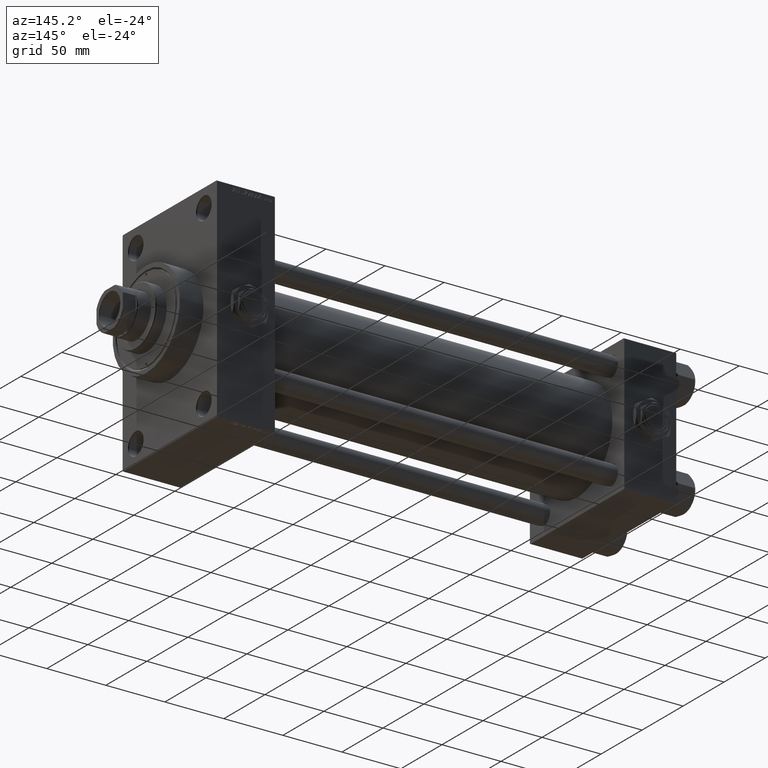
[diagram: clean part render]
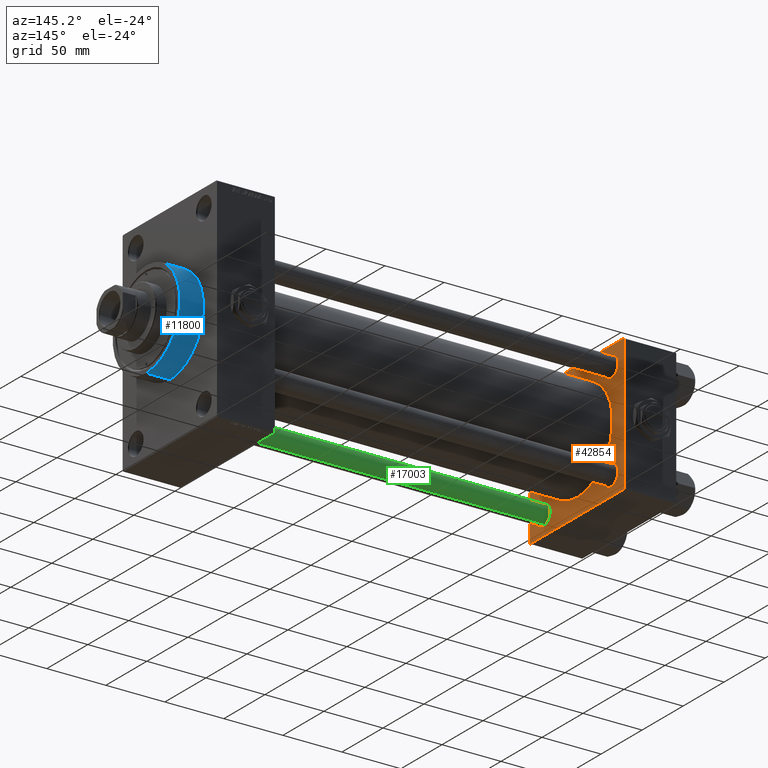
[diagram: same view with three faces highlighted in distinct colors, each labeled with its STEP entity id]
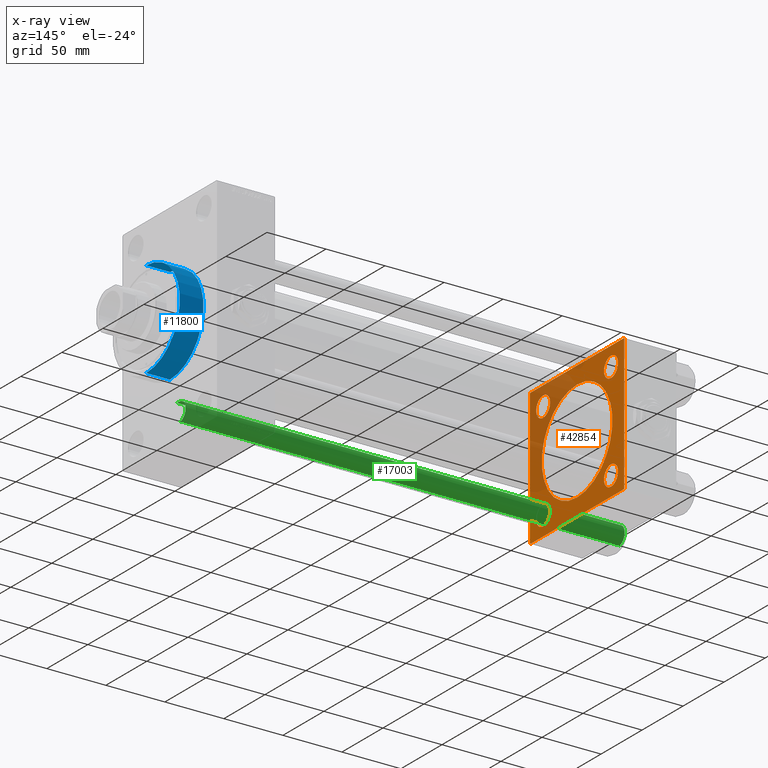
[diagram: x-ray of the same camera — body ghosted, the three highlighted faces saturated]
A machine part, auxiliary view with three faces highlighted in distinct colors.
The next image is the same camera in x-ray (body ghosted, the three faces saturated) — at least one of them is partly hidden behind the body in this view.
Their STEP definitions:

[orange] entity #42854 — the highlighted planar face has unit normal (-1, 0, 0).
#926 = CARTESIAN_POINT ( 'NONE',  ( 44.00000000000000000, 41.34999999999999432, -41.35000000000000142 ) ) ;
#987 = CARTESIAN_POINT ( 'NONE',  ( 44.00000000000000000, 57.49999999999999289, 57.50000000000000711 ) ) ;
#1160 = CARTESIAN_POINT ( 'NONE',  ( 44.00000000000000000, 57.00000000000000711, 57.50000000000000711 ) ) ;
#1310 = VERTEX_POINT ( 'NONE', #1160 ) ;
#1974 = EDGE_CURVE ( 'NONE', #4728, #11962, #9548, .T. ) ;
#2248 = AXIS2_PLACEMENT_3D ( 'NONE', #34813, #24191, #12304 ) ;
#2604 = CARTESIAN_POINT ( 'NONE',  ( 44.00000000000000000, -41.34999999999998721, -49.85000000000002274 ) ) ;
#2714 = CARTESIAN_POINT ( 'NONE',  ( 44.00000000000000000, -41.34999999999998721, -32.85000000000000142 ) ) ;
#3235 = VERTEX_POINT ( 'NONE', #35497 ) ;
#3371 = ORIENTED_EDGE ( 'NONE', *, *, #25152, .T. ) ;
#3894 = VERTEX_POINT ( 'NONE', #27728 ) ;
#4070 = CARTESIAN_POINT ( 'NONE',  ( 44.00000000000000000, -41.34999999999998721, 32.85000000000000142 ) ) ;
#4121 = ORIENTED_EDGE ( 'NONE', *, *, #17102, .T. ) ;
#4189 = CARTESIAN_POINT ( 'NONE',  ( 44.00000000000000000, 57.49999999999999289, -57.49999999999999289 ) ) ;
#4604 = VERTEX_POINT ( 'NONE', #21951 ) ;
#4619 = EDGE_LOOP ( 'NONE', ( #24605, #30424 ) ) ;
#4728 = VERTEX_POINT ( 'NONE', #27236 ) ;
#5575 = VECTOR ( 'NONE', #7831, 1000.000000000000000 ) ;
#6070 = EDGE_LOOP ( 'NONE', ( #7969, #35408 ) ) ;
#7140 = EDGE_CURVE ( 'NONE', #36624, #33031, #15646, .T. ) ;
#7188 = VERTEX_POINT ( 'NONE', #42701 ) ;
#7281 = VERTEX_POINT ( 'NONE', #9324 ) ;
#7466 = EDGE_LOOP ( 'NONE', ( #41020, #23573 ) ) ;
#7478 = DIRECTION ( 'NONE',  ( 0.000000000000000000, 0.7071067811865474617, -0.7071067811865474617 ) ) ;
#7627 = CARTESIAN_POINT ( 'NONE',  ( 44.00000000000000000, 41.34999999999999432, 41.35000000000000142 ) ) ;
#7831 = DIRECTION ( 'NONE',  ( 0.000000000000000000, 0.000000000000000000, -1.000000000000000000 ) ) ;
#7969 = ORIENTED_EDGE ( 'NONE', *, *, #17275, .T. ) ;
#8057 = EDGE_CURVE ( 'NONE', #46664, #41286, #19688, .T. ) ;
#8285 = VECTOR ( 'NONE', #43813, 1000.000000000000114 ) ;
#8626 = FACE_BOUND ( 'NONE', #17280, .T. ) ;
#8636 = EDGE_CURVE ( 'NONE', #18512, #29379, #49222, .T. ) ;
#8782 = DIRECTION ( 'NONE',  ( -1.000000000000000000, 0.000000000000000000, -0.000000000000000000 ) ) ;
#8943 = LINE ( 'NONE', #24356, #8285 ) ;
#9012 = DIRECTION ( 'NONE',  ( 0.000000000000000000, 0.000000000000000000, 1.000000000000000000 ) ) ;
#9324 = CARTESIAN_POINT ( 'NONE',  ( 44.00000000000000000, -57.00000000000000711, -57.50000000000000711 ) ) ;
#9350 = ORIENTED_EDGE ( 'NONE', *, *, #26186, .F. ) ;
#9548 = CIRCLE ( 'NONE', #2248, 43.00000000000000000 ) ;
#9910 = AXIS2_PLACEMENT_3D ( 'NONE', #48192, #28223, #9012 ) ;
#10739 = AXIS2_PLACEMENT_3D ( 'NONE', #7627, #22290, #49851 ) ;
#10901 = CARTESIAN_POINT ( 'NONE',  ( 44.00000000000000000, -57.50000000000000711, 57.00000000000000711 ) ) ;
#11282 = ORIENTED_EDGE ( 'NONE', *, *, #27041, .T. ) ;
#11309 = ORIENTED_EDGE ( 'NONE', *, *, #17804, .T. ) ;
#11902 = CARTESIAN_POINT ( 'NONE',  ( 44.00000000000000000, 0.000000000000000000, 0.000000000000000000 ) ) ;
#11962 = VERTEX_POINT ( 'NONE', #22264 ) ;
#12304 = DIRECTION ( 'NONE',  ( 0.000000000000000000, 0.000000000000000000, 1.000000000000000000 ) ) ;
#12360 = AXIS2_PLACEMENT_3D ( 'NONE', #11902, #31871, #19471 ) ;
#12658 = FACE_BOUND ( 'NONE', #34454, .T. ) ;
#13358 = CARTESIAN_POINT ( 'NONE',  ( 44.00000000000000000, 41.34999999999999432, 41.35000000000000142 ) ) ;
#13385 = DIRECTION ( 'NONE',  ( -1.000000000000000000, 0.000000000000000000, -0.000000000000000000 ) ) ;
#14051 = CIRCLE ( 'NONE', #19655, 43.00000000000000000 ) ;
#14391 = ORIENTED_EDGE ( 'NONE', *, *, #7140, .T. ) ;
#14881 = DIRECTION ( 'NONE',  ( 0.000000000000000000, -1.000000000000000000, -1.206764157201257045E-16 ) ) ;
#15351 = EDGE_LOOP ( 'NONE', ( #9350, #24336, #49417, #11282, #4121, #33956, #14391, #3371 ) ) ;
#15556 = CIRCLE ( 'NONE', #10739, 8.500000000000007105 ) ;
#15615 = DIRECTION ( 'NONE',  ( -1.000000000000000000, 0.000000000000000000, -0.000000000000000000 ) ) ;
#15646 = LINE ( 'NONE', #27785, #5575 ) ;
#16210 = CARTESIAN_POINT ( 'NONE',  ( 43.99999999999998579, -2.602085213965210642E-15, 0.000000000000000000 ) ) ;
#16403 = DIRECTION ( 'NONE',  ( 0.000000000000000000, 0.000000000000000000, -1.000000000000000000 ) ) ;
#16422 = CARTESIAN_POINT ( 'NONE',  ( 44.00000000000000000, 41.34999999999999432, 32.84999999999999432 ) ) ;
#17102 = EDGE_CURVE ( 'NONE', #1310, #3894, #21723, .T. ) ;
#17275 = EDGE_CURVE ( 'NONE', #25281, #42744, #30115, .T. ) ;
#17280 = EDGE_LOOP ( 'NONE', ( #11309, #17833 ) ) ;
#17407 = VECTOR ( 'NONE', #27692, 1000.000000000000000 ) ;
#17581 = VECTOR ( 'NONE', #41742, 1000.000000000000114 ) ;
#17804 = EDGE_CURVE ( 'NONE', #42213, #3235, #15556, .T. ) ;
#17833 = ORIENTED_EDGE ( 'NONE', *, *, #37882, .T. ) ;
#17946 = DIRECTION ( 'NONE',  ( 0.000000000000000000, 0.000000000000000000, 1.000000000000000000 ) ) ;
#17981 = CIRCLE ( 'NONE', #41414, 8.500000000000007105 ) ;
#18512 = VERTEX_POINT ( 'NONE', #2714 ) ;
#18516 = CARTESIAN_POINT ( 'NONE',  ( 44.00000000000000000, 57.49999999999999289, 57.00000000000003553 ) ) ;
#18983 = CARTESIAN_POINT ( 'NONE',  ( 44.00000000000000000, -41.34999999999998721, 49.85000000000002274 ) ) ;
#19051 = EDGE_CURVE ( 'NONE', #7188, #41286, #8943, .T. ) ;
#19111 = CARTESIAN_POINT ( 'NONE',  ( 44.00000000000000000, 57.00000000000000711, 57.50000000000000711 ) ) ;
#19471 = DIRECTION ( 'NONE',  ( -0.000000000000000000, 0.000000000000000000, 1.000000000000000000 ) ) ;
#19651 = CARTESIAN_POINT ( 'NONE',  ( 44.00000000000000000, -41.34999999999998721, 41.35000000000000853 ) ) ;
#19655 = AXIS2_PLACEMENT_3D ( 'NONE', #16210, #29039, #29532 ) ;
#19688 = LINE ( 'NONE', #987, #41916 ) ;
#19810 = EDGE_CURVE ( 'NONE', #42744, #25281, #34123, .T. ) ;
#20531 = LINE ( 'NONE', #35966, #44005 ) ;
#20797 = EDGE_CURVE ( 'NONE', #4604, #44003, #17981, .T. ) ;
#21723 = LINE ( 'NONE', #42181, #38165 ) ;
#21951 = CARTESIAN_POINT ( 'NONE',  ( 44.00000000000000000, 41.34999999999999432, -32.84999999999999432 ) ) ;
#22264 = CARTESIAN_POINT ( 'NONE',  ( 43.99999999999998579, 2.663896022368408223E-15, -43.00000000000000000 ) ) ;
#22290 = DIRECTION ( 'NONE',  ( -1.000000000000000000, 0.000000000000000000, -0.000000000000000000 ) ) ;
#23573 = ORIENTED_EDGE ( 'NONE', *, *, #44857, .F. ) ;
#23786 = FACE_OUTER_BOUND ( 'NONE', #15351, .T. ) ;
#23997 = CARTESIAN_POINT ( 'NONE',  ( 44.00000000000000000, 41.34999999999999432, -49.85000000000001563 ) ) ;
#24191 = DIRECTION ( 'NONE',  ( 1.000000000000000000, -0.000000000000000000, 0.000000000000000000 ) ) ;
#24196 = DIRECTION ( 'NONE',  ( 0.000000000000000000, 0.000000000000000000, 1.000000000000000000 ) ) ;
#24336 = ORIENTED_EDGE ( 'NONE', *, *, #19051, .T. ) ;
#24356 = CARTESIAN_POINT ( 'NONE',  ( 44.00000000000000000, 57.49999999999999289, -57.00000000000000711 ) ) ;
#24378 = DIRECTION ( 'NONE',  ( -1.000000000000000000, 0.000000000000000000, -0.000000000000000000 ) ) ;
#24605 = ORIENTED_EDGE ( 'NONE', *, *, #29794, .T. ) ;
#25152 = EDGE_CURVE ( 'NONE', #33031, #7281, #20531, .T. ) ;
#25281 = VERTEX_POINT ( 'NONE', #4070 ) ;
#26186 = EDGE_CURVE ( 'NONE', #7188, #7281, #42857, .T. ) ;
#26570 = CIRCLE ( 'NONE', #30612, 8.500000000000007105 ) ;
#27041 = EDGE_CURVE ( 'NONE', #46664, #1310, #39587, .T. ) ;
#27236 = CARTESIAN_POINT ( 'NONE',  ( 43.99999999999998579, -2.602085213965210642E-15, 43.00000000000000000 ) ) ;
#27692 = DIRECTION ( 'NONE',  ( 0.000000000000000000, -1.000000000000000000, -1.206764157201257045E-16 ) ) ;
#27728 = CARTESIAN_POINT ( 'NONE',  ( 44.00000000000000000, -57.00000000000003553, 57.49999999999999289 ) ) ;
#27785 = CARTESIAN_POINT ( 'NONE',  ( 44.00000000000000000, -57.50000000000000711, 57.49999999999999289 ) ) ;
#28023 = CIRCLE ( 'NONE', #36897, 8.500000000000007105 ) ;
#28082 = FACE_BOUND ( 'NONE', #6070, .T. ) ;
#28195 = AXIS2_PLACEMENT_3D ( 'NONE', #40038, #24378, #36255 ) ;
#28223 = DIRECTION ( 'NONE',  ( -1.000000000000000000, 0.000000000000000000, -0.000000000000000000 ) ) ;
#29039 = DIRECTION ( 'NONE',  ( 1.000000000000000000, -0.000000000000000000, 0.000000000000000000 ) ) ;
#29089 = CARTESIAN_POINT ( 'NONE',  ( 44.00000000000000000, -41.34999999999998721, -41.35000000000000853 ) ) ;
#29379 = VERTEX_POINT ( 'NONE', #2604 ) ;
#29532 = DIRECTION ( 'NONE',  ( 0.000000000000000000, 0.000000000000000000, 1.000000000000000000 ) ) ;
#29794 = EDGE_CURVE ( 'NONE', #44003, #4604, #28023, .T. ) ;
#30115 = CIRCLE ( 'NONE', #43031, 8.500000000000007105 ) ;
#30424 = ORIENTED_EDGE ( 'NONE', *, *, #20797, .T. ) ;
#30489 = ORIENTED_EDGE ( 'NONE', *, *, #8636, .T. ) ;
#30612 = AXIS2_PLACEMENT_3D ( 'NONE', #13358, #32824, #44205 ) ;
#30872 = FACE_BOUND ( 'NONE', #7466, .T. ) ;
#31871 = DIRECTION ( 'NONE',  ( -1.000000000000000000, 0.000000000000000000, -0.000000000000000000 ) ) ;
#32824 = DIRECTION ( 'NONE',  ( -1.000000000000000000, 0.000000000000000000, -0.000000000000000000 ) ) ;
#33031 = VERTEX_POINT ( 'NONE', #34613 ) ;
#33666 = EDGE_CURVE ( 'NONE', #29379, #18512, #36135, .T. ) ;
#33686 = CARTESIAN_POINT ( 'NONE',  ( 44.00000000000000000, -57.50000000000000711, 57.00000000000000711 ) ) ;
#33956 = ORIENTED_EDGE ( 'NONE', *, *, #34407, .T. ) ;
#34123 = CIRCLE ( 'NONE', #9910, 8.500000000000007105 ) ;
#34407 = EDGE_CURVE ( 'NONE', #3894, #36624, #45542, .T. ) ;
#34454 = EDGE_LOOP ( 'NONE', ( #44125, #30489 ) ) ;
#34548 = DIRECTION ( 'NONE',  ( 0.000000000000000000, -0.7071067811865573427, 0.7071067811865376918 ) ) ;
#34613 = CARTESIAN_POINT ( 'NONE',  ( 44.00000000000000000, -57.50000000000000711, -57.00000000000000711 ) ) ;
#34813 = CARTESIAN_POINT ( 'NONE',  ( 43.99999999999998579, -2.602085213965210642E-15, 0.000000000000000000 ) ) ;
#35398 = CARTESIAN_POINT ( 'NONE',  ( 44.00000000000000000, 57.49999999999999289, -57.00000000000000711 ) ) ;
#35408 = ORIENTED_EDGE ( 'NONE', *, *, #19810, .T. ) ;
#35497 = CARTESIAN_POINT ( 'NONE',  ( 44.00000000000000000, 41.34999999999999432, 49.85000000000001563 ) ) ;
#35660 = PLANE ( 'NONE',  #12360 ) ;
#35966 = CARTESIAN_POINT ( 'NONE',  ( 44.00000000000000000, -57.00000000000000711, -57.50000000000000711 ) ) ;
#36135 = CIRCLE ( 'NONE', #39347, 8.500000000000007105 ) ;
#36255 = DIRECTION ( 'NONE',  ( 0.000000000000000000, 0.000000000000000000, 1.000000000000000000 ) ) ;
#36624 = VERTEX_POINT ( 'NONE', #33686 ) ;
#36897 = AXIS2_PLACEMENT_3D ( 'NONE', #926, #8782, #24196 ) ;
#36900 = DIRECTION ( 'NONE',  ( 0.000000000000000000, 0.000000000000000000, 1.000000000000000000 ) ) ;
#37882 = EDGE_CURVE ( 'NONE', #3235, #42213, #26570, .T. ) ;
#38165 = VECTOR ( 'NONE', #14881, 1000.000000000000000 ) ;
#39347 = AXIS2_PLACEMENT_3D ( 'NONE', #29089, #48570, #17946 ) ;
#39391 = DIRECTION ( 'NONE',  ( 0.000000000000000000, 0.000000000000000000, 1.000000000000000000 ) ) ;
#39587 = LINE ( 'NONE', #19111, #44039 ) ;
#40038 = CARTESIAN_POINT ( 'NONE',  ( 44.00000000000000000, -41.34999999999998721, -41.35000000000000853 ) ) ;
#40184 = CARTESIAN_POINT ( 'NONE',  ( 44.00000000000000000, 41.34999999999999432, -41.35000000000000142 ) ) ;
#41020 = ORIENTED_EDGE ( 'NONE', *, *, #1974, .F. ) ;
#41286 = VERTEX_POINT ( 'NONE', #35398 ) ;
#41414 = AXIS2_PLACEMENT_3D ( 'NONE', #40184, #13385, #36900 ) ;
#41742 = DIRECTION ( 'NONE',  ( -0.000000000000000000, -0.7071067811865376918, -0.7071067811865573427 ) ) ;
#41916 = VECTOR ( 'NONE', #16403, 1000.000000000000000 ) ;
#42181 = CARTESIAN_POINT ( 'NONE',  ( 44.00000000000000000, 57.49999999999999289, 57.50000000000000711 ) ) ;
#42213 = VERTEX_POINT ( 'NONE', #16422 ) ;
#42701 = CARTESIAN_POINT ( 'NONE',  ( 44.00000000000000000, 57.00000000000002132, -57.49999999999999289 ) ) ;
#42744 = VERTEX_POINT ( 'NONE', #18983 ) ;
#42854 = ADVANCED_FACE ( 'NONE', ( #12658, #43238, #28082, #8626, #30872, #23786 ), #35660, .F. ) ;
#42857 = LINE ( 'NONE', #4189, #17407 ) ;
#43031 = AXIS2_PLACEMENT_3D ( 'NONE', #19651, #15615, #39391 ) ;
#43238 = FACE_BOUND ( 'NONE', #4619, .T. ) ;
#43813 = DIRECTION ( 'NONE',  ( -0.000000000000000000, 0.7071067811865376918, 0.7071067811865573427 ) ) ;
#44003 = VERTEX_POINT ( 'NONE', #23997 ) ;
#44005 = VECTOR ( 'NONE', #7478, 1000.000000000000114 ) ;
#44039 = VECTOR ( 'NONE', #34548, 1000.000000000000114 ) ;
#44125 = ORIENTED_EDGE ( 'NONE', *, *, #33666, .T. ) ;
#44205 = DIRECTION ( 'NONE',  ( 0.000000000000000000, 0.000000000000000000, 1.000000000000000000 ) ) ;
#44857 = EDGE_CURVE ( 'NONE', #11962, #4728, #14051, .T. ) ;
#45542 = LINE ( 'NONE', #10901, #17581 ) ;
#46664 = VERTEX_POINT ( 'NONE', #18516 ) ;
#48192 = CARTESIAN_POINT ( 'NONE',  ( 44.00000000000000000, -41.34999999999998721, 41.35000000000000853 ) ) ;
#48570 = DIRECTION ( 'NONE',  ( -1.000000000000000000, 0.000000000000000000, -0.000000000000000000 ) ) ;
#49222 = CIRCLE ( 'NONE', #28195, 8.500000000000007105 ) ;
#49417 = ORIENTED_EDGE ( 'NONE', *, *, #8057, .F. ) ;
#49851 = DIRECTION ( 'NONE',  ( 0.000000000000000000, 0.000000000000000000, 1.000000000000000000 ) ) ;

[blue] entity #11800 — the highlighted cylindrical surface (partial cylindrical patch) has radius 41 mm, axis along (-1, -0, -0).
#1907 = EDGE_CURVE ( 'NONE', #49213, #10602, #35563, .T. ) ;
#3650 = CARTESIAN_POINT ( 'NONE',  ( 409.0000000000000000, 0.000000000000000000, 0.000000000000000000 ) ) ;
#3856 = DIRECTION ( 'NONE',  ( 0.000000000000000000, 0.000000000000000000, 1.000000000000000000 ) ) ;
#4111 = CARTESIAN_POINT ( 'NONE',  ( 409.0000000000000000, 0.000000000000000000, 0.000000000000000000 ) ) ;
#4529 = DIRECTION ( 'NONE',  ( -1.000000000000000000, -0.000000000000000000, -0.000000000000000000 ) ) ;
#4671 = VECTOR ( 'NONE', #16329, 1000.000000000000000 ) ;
#6344 = EDGE_CURVE ( 'NONE', #34731, #49213, #16023, .T. ) ;
#6519 = ORIENTED_EDGE ( 'NONE', *, *, #33849, .T. ) ;
#7659 = FACE_OUTER_BOUND ( 'NONE', #17157, .T. ) ;
#7889 = CARTESIAN_POINT ( 'NONE',  ( 388.9999999999999432, 5.021051876504148963E-15, -41.00000000000000000 ) ) ;
#9036 = DIRECTION ( 'NONE',  ( 1.000000000000000000, 0.000000000000000000, 0.000000000000000000 ) ) ;
#10602 = VERTEX_POINT ( 'NONE', #10866 ) ;
#10866 = CARTESIAN_POINT ( 'NONE',  ( 388.9999999999999432, 0.000000000000000000, 41.00000000000000000 ) ) ;
#11800 = ADVANCED_FACE ( 'NONE', ( #7659 ), #23077, .T. ) ;
#12477 = EDGE_CURVE ( 'NONE', #49141, #10602, #45302, .T. ) ;
#12823 = CARTESIAN_POINT ( 'NONE',  ( 388.9999999999999432, 0.000000000000000000, 0.000000000000000000 ) ) ;
#16023 = CIRCLE ( 'NONE', #41835, 41.00000000000000000 ) ;
#16329 = DIRECTION ( 'NONE',  ( -1.000000000000000000, -0.000000000000000000, -0.000000000000000000 ) ) ;
#17157 = EDGE_LOOP ( 'NONE', ( #42927, #6519, #37193, #26218 ) ) ;
#19482 = CARTESIAN_POINT ( 'NONE',  ( 409.0000000000000000, 0.000000000000000000, 41.00000000000000000 ) ) ;
#19676 = LINE ( 'NONE', #39162, #49039 ) ;
#20369 = CARTESIAN_POINT ( 'NONE',  ( 409.0000000000000000, 0.000000000000000000, 41.00000000000000000 ) ) ;
#23077 = CYLINDRICAL_SURFACE ( 'NONE', #40424, 41.00000000000000000 ) ;
#26218 = ORIENTED_EDGE ( 'NONE', *, *, #1907, .F. ) ;
#32108 = CARTESIAN_POINT ( 'NONE',  ( 409.0000000000000000, 5.021051876504148963E-15, -41.00000000000000000 ) ) ;
#33849 = EDGE_CURVE ( 'NONE', #34731, #49141, #19676, .T. ) ;
#34494 = DIRECTION ( 'NONE',  ( 1.000000000000000000, 0.000000000000000000, 0.000000000000000000 ) ) ;
#34731 = VERTEX_POINT ( 'NONE', #32108 ) ;
#35563 = LINE ( 'NONE', #20369, #4671 ) ;
#37193 = ORIENTED_EDGE ( 'NONE', *, *, #12477, .T. ) ;
#38489 = DIRECTION ( 'NONE',  ( -1.000000000000000000, -0.000000000000000000, -0.000000000000000000 ) ) ;
#39162 = CARTESIAN_POINT ( 'NONE',  ( 409.0000000000000000, 5.021051876504148963E-15, -41.00000000000000000 ) ) ;
#40424 = AXIS2_PLACEMENT_3D ( 'NONE', #4111, #38489, #3856 ) ;
#41835 = AXIS2_PLACEMENT_3D ( 'NONE', #3650, #34494, #42568 ) ;
#42568 = DIRECTION ( 'NONE',  ( 0.000000000000000000, 0.000000000000000000, -1.000000000000000000 ) ) ;
#42927 = ORIENTED_EDGE ( 'NONE', *, *, #6344, .F. ) ;
#45302 = CIRCLE ( 'NONE', #46925, 41.00000000000000000 ) ;
#46925 = AXIS2_PLACEMENT_3D ( 'NONE', #12823, #9036, #47717 ) ;
#47717 = DIRECTION ( 'NONE',  ( 0.000000000000000000, 0.000000000000000000, -1.000000000000000000 ) ) ;
#49039 = VECTOR ( 'NONE', #4529, 1000.000000000000000 ) ;
#49141 = VERTEX_POINT ( 'NONE', #7889 ) ;
#49213 = VERTEX_POINT ( 'NONE', #19482 ) ;

[green] entity #17003 — the highlighted cylindrical surface (edge-blend (fillet) strip) has radius 8 mm, axis along (-1, 0, 0).
#975 = CARTESIAN_POINT ( 'NONE',  ( 0.000000000000000000, 0.000000000000000000, 372.5000000000000000 ) ) ;
#1406 = DIRECTION ( 'NONE',  ( -0.000000000000000000, -0.000000000000000000, 1.000000000000000000 ) ) ;
#2856 = CARTESIAN_POINT ( 'NONE',  ( -8.000000000000000000, 0.000000000000000000, 0.5000000000000559552 ) ) ;
#3708 = EDGE_LOOP ( 'NONE', ( #7076, #14266, #49852, #36091 ) ) ;
#5874 = VECTOR ( 'NONE', #18970, 1000.000000000000000 ) ;
#6267 = AXIS2_PLACEMENT_3D ( 'NONE', #975, #16388, #46251 ) ;
#7076 = ORIENTED_EDGE ( 'NONE', *, *, #15289, .F. ) ;
#13754 = EDGE_CURVE ( 'NONE', #24714, #29333, #49106, .T. ) ;
#14266 = ORIENTED_EDGE ( 'NONE', *, *, #33912, .T. ) ;
#14745 = AXIS2_PLACEMENT_3D ( 'NONE', #34898, #15431, #24037 ) ;
#15289 = EDGE_CURVE ( 'NONE', #31471, #19357, #33479, .T. ) ;
#15431 = DIRECTION ( 'NONE',  ( -0.000000000000000000, -0.000000000000000000, -1.000000000000000000 ) ) ;
#16388 = DIRECTION ( 'NONE',  ( 0.000000000000000000, 0.000000000000000000, -1.000000000000000000 ) ) ;
#17003 = ADVANCED_FACE ( 'NONE', ( #19463 ), #39693, .T. ) ;
#17068 = DIRECTION ( 'NONE',  ( 1.000000000000000000, 0.000000000000000000, 0.000000000000000000 ) ) ;
#18970 = DIRECTION ( 'NONE',  ( -0.000000000000000000, -0.000000000000000000, -1.000000000000000000 ) ) ;
#19357 = VERTEX_POINT ( 'NONE', #21688 ) ;
#19463 = FACE_OUTER_BOUND ( 'NONE', #3708, .T. ) ;
#21688 = CARTESIAN_POINT ( 'NONE',  ( 8.000000000000000000, 9.797174393178825657E-16, 0.5000000000000559552 ) ) ;
#24037 = DIRECTION ( 'NONE',  ( -1.000000000000000000, 0.000000000000000000, 0.000000000000000000 ) ) ;
#24714 = VERTEX_POINT ( 'NONE', #42173 ) ;
#26393 = DIRECTION ( 'NONE',  ( -0.000000000000000000, -0.000000000000000000, -1.000000000000000000 ) ) ;
#26885 = CIRCLE ( 'NONE', #33358, 8.000000000000000000 ) ;
#29333 = VERTEX_POINT ( 'NONE', #2856 ) ;
#31471 = VERTEX_POINT ( 'NONE', #47537 ) ;
#33358 = AXIS2_PLACEMENT_3D ( 'NONE', #36303, #1406, #17068 ) ;
#33479 = LINE ( 'NONE', #44859, #39757 ) ;
#33912 = EDGE_CURVE ( 'NONE', #31471, #24714, #38550, .T. ) ;
#34898 = CARTESIAN_POINT ( 'NONE',  ( 0.000000000000000000, 0.000000000000000000, 373.0000000000000000 ) ) ;
#36091 = ORIENTED_EDGE ( 'NONE', *, *, #44241, .T. ) ;
#36303 = CARTESIAN_POINT ( 'NONE',  ( 0.000000000000000000, 0.000000000000000000, 0.5000000000000559552 ) ) ;
#37952 = CARTESIAN_POINT ( 'NONE',  ( -8.000000000000000000, 0.000000000000000000, 373.0000000000000000 ) ) ;
#38550 = CIRCLE ( 'NONE', #6267, 8.000000000000000000 ) ;
#39693 = CYLINDRICAL_SURFACE ( 'NONE', #14745, 8.000000000000000000 ) ;
#39757 = VECTOR ( 'NONE', #26393, 1000.000000000000000 ) ;
#42173 = CARTESIAN_POINT ( 'NONE',  ( -8.000000000000000000, 0.000000000000000000, 372.5000000000000000 ) ) ;
#44241 = EDGE_CURVE ( 'NONE', #29333, #19357, #26885, .T. ) ;
#44859 = CARTESIAN_POINT ( 'NONE',  ( 8.000000000000000000, 9.797174393178825657E-16, 373.0000000000000000 ) ) ;
#46251 = DIRECTION ( 'NONE',  ( 1.000000000000000000, 0.000000000000000000, 0.000000000000000000 ) ) ;
#47537 = CARTESIAN_POINT ( 'NONE',  ( 8.000000000000000000, 9.797174393178825657E-16, 372.5000000000000000 ) ) ;
#49106 = LINE ( 'NONE', #37952, #5874 ) ;
#49852 = ORIENTED_EDGE ( 'NONE', *, *, #13754, .T. ) ;